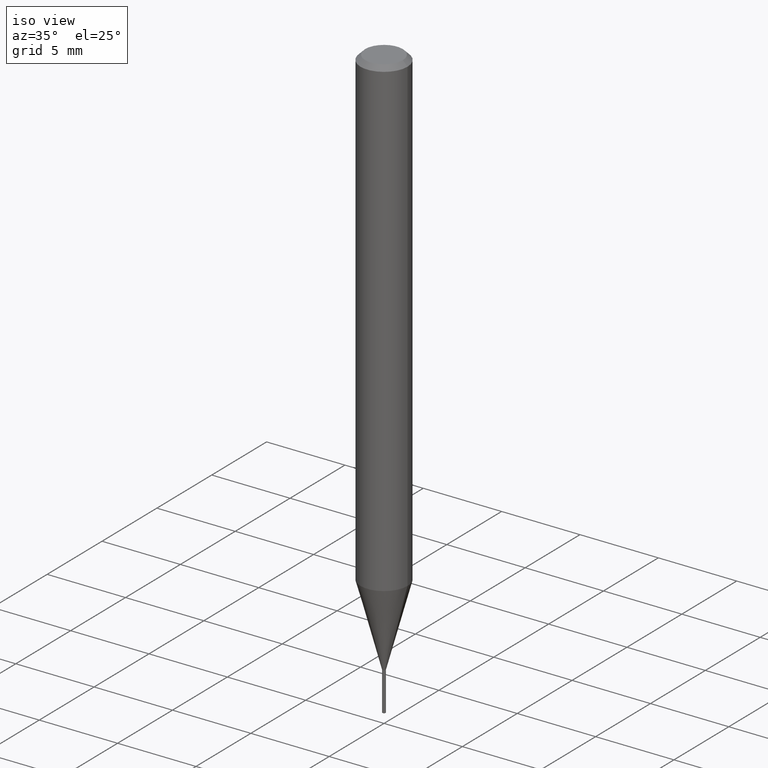
[diagram: clean part render]
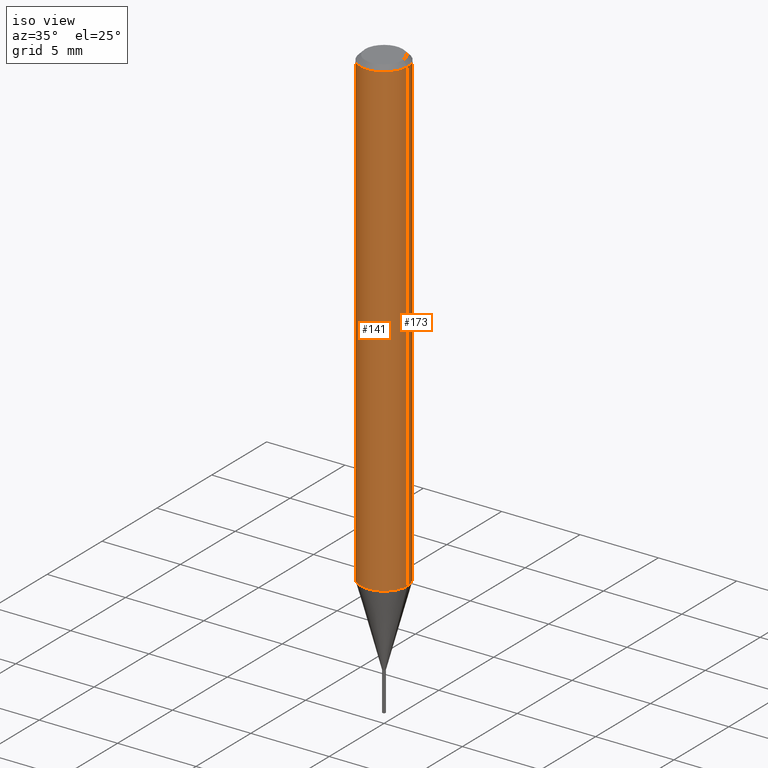
[diagram: same view with one multi-face feature highlighted, each face labeled with its STEP entity id]
A machine part, iso view. The highlighted faces form ONE feature: a constant-radius fillet chain: 2 tangent blend faces with common blend radius 1.4999 mm. The faces share edges in the B-rep.
Their STEP definitions:
[1] entity #141 (Cylinder):
#2 = CIRCLE ( 'NONE', #10, 0.05905000000000014404 ) ;
#8 = DIRECTION ( 'NONE',  ( 1.000000000000000000, -6.982962677686266711E-15, 0.000000000000000000 ) ) ;
#10 = AXIS2_PLACEMENT_3D ( 'NONE', #484, #146, #452 ) ;
#47 = DIRECTION ( 'NONE',  ( -2.445468806185136597E-29, 3.491481338843145583E-15, 1.000000000000000000 ) ) ;
#69 = VERTEX_POINT ( 'NONE', #350 ) ;
#88 = DIRECTION ( 'NONE',  ( 1.000000000000000000, -6.982962677686266711E-15, 4.876176775795936353E-29 ) ) ;
#115 = CARTESIAN_POINT ( 'NONE',  ( 2.888098660104664204E-31, -4.123439461173780263E-17, -0.01181000000000007218 ) ) ;
#128 = LINE ( 'NONE', #367, #328 ) ;
#131 = EDGE_CURVE ( 'NONE', #133, #456, #2, .T. ) ;
#133 = VERTEX_POINT ( 'NONE', #279 ) ;
#141 = ADVANCED_FACE ( 'NONE', ( #431 ), #274, .T. ) ;
#146 = DIRECTION ( 'NONE',  ( -2.445468806185136597E-29, 3.491481338843145583E-15, 1.000000000000000000 ) ) ;
#158 = EDGE_CURVE ( 'NONE', #69, #364, #202, .T. ) ;
#190 = ORIENTED_EDGE ( 'NONE', *, *, #419, .T. ) ;
#201 = DIRECTION ( 'NONE',  ( -2.445468806185136597E-29, 3.491481338843145583E-15, 1.000000000000000000 ) ) ;
#202 = CIRCLE ( 'NONE', #475, 0.05904999999999999832 ) ;
#274 = CYLINDRICAL_SURFACE ( 'NONE', #467, 0.05905000000000006771 ) ;
#279 = CARTESIAN_POINT ( 'NONE',  ( -0.05905000000000014404, -3.738303949389820923E-15, -1.190864000502954712 ) ) ;
#290 = ORIENTED_EDGE ( 'NONE', *, *, #131, .T. ) ;
#291 = LINE ( 'NONE', #446, #427 ) ;
#300 = CARTESIAN_POINT ( 'NONE',  ( 0.05905000000000014404, -4.570223380973535336E-15, -1.190864000502954712 ) ) ;
#325 = EDGE_CURVE ( 'NONE', #133, #69, #128, .T. ) ;
#326 = DIRECTION ( 'NONE',  ( -2.445468806185136877E-29, 3.491481338843145188E-15, 1.000000000000000000 ) ) ;
#328 = VECTOR ( 'NONE', #326, 39.37007874015748143 ) ;
#350 = CARTESIAN_POINT ( 'NONE',  ( -0.05904999999999999832, -1.679981429267608988E-15, -0.01181000000000007218 ) ) ;
#364 = VERTEX_POINT ( 'NONE', #432 ) ;
#367 = CARTESIAN_POINT ( 'NONE',  ( -0.05905000000000006771, 4.195754854663396409E-16, -2.904631170795525045E-30 ) ) ;
#372 = DIRECTION ( 'NONE',  ( -2.445468806185136877E-29, 3.491481338843145188E-15, 1.000000000000000000 ) ) ;
#402 = ORIENTED_EDGE ( 'NONE', *, *, #325, .F. ) ;
#409 = EDGE_LOOP ( 'NONE', ( #402, #290, #190, #417 ) ) ;
#417 = ORIENTED_EDGE ( 'NONE', *, *, #158, .F. ) ;
#419 = EDGE_CURVE ( 'NONE', #456, #364, #291, .T. ) ;
#423 = CARTESIAN_POINT ( 'NONE',  ( 0.000000000000000000, 0.000000000000000000, 0.000000000000000000 ) ) ;
#427 = VECTOR ( 'NONE', #372, 39.37007874015748143 ) ;
#431 = FACE_OUTER_BOUND ( 'NONE', #409, .T. ) ;
#432 = CARTESIAN_POINT ( 'NONE',  ( 0.05904999999999999832, -4.535783407291118600E-16, -0.01181000000000007218 ) ) ;
#446 = CARTESIAN_POINT ( 'NONE',  ( 0.05905000000000006771, -4.123439461173745257E-16, 2.879382386107503723E-30 ) ) ;
#452 = DIRECTION ( 'NONE',  ( 1.000000000000000000, -6.982962677686272233E-15, 0.000000000000000000 ) ) ;
#456 = VERTEX_POINT ( 'NONE', #300 ) ;
#467 = AXIS2_PLACEMENT_3D ( 'NONE', #423, #47, #88 ) ;
#475 = AXIS2_PLACEMENT_3D ( 'NONE', #115, #201, #8 ) ;
#484 = CARTESIAN_POINT ( 'NONE',  ( 2.912220765638816514E-29, -4.157879434856161205E-15, -1.190864000502954712 ) ) ;
[2] entity #173 (Cylinder):
#35 = EDGE_LOOP ( 'NONE', ( #471, #217, #479, #213 ) ) ;
#53 = CYLINDRICAL_SURFACE ( 'NONE', #153, 0.05905000000000006771 ) ;
#69 = VERTEX_POINT ( 'NONE', #350 ) ;
#77 = AXIS2_PLACEMENT_3D ( 'NONE', #370, #206, #99 ) ;
#85 = DIRECTION ( 'NONE',  ( -2.445468806185136597E-29, 3.491481338843145583E-15, 1.000000000000000000 ) ) ;
#99 = DIRECTION ( 'NONE',  ( 1.000000000000000000, -6.982962677686272233E-15, 0.000000000000000000 ) ) ;
#128 = LINE ( 'NONE', #367, #328 ) ;
#133 = VERTEX_POINT ( 'NONE', #279 ) ;
#145 = AXIS2_PLACEMENT_3D ( 'NONE', #275, #85, #458 ) ;
#153 = AXIS2_PLACEMENT_3D ( 'NONE', #459, #240, #165 ) ;
#165 = DIRECTION ( 'NONE',  ( 1.000000000000000000, -6.982962677686266711E-15, 4.876176775795936353E-29 ) ) ;
#173 = ADVANCED_FACE ( 'NONE', ( #194 ), #53, .T. ) ;
#191 = EDGE_CURVE ( 'NONE', #364, #69, #433, .T. ) ;
#194 = FACE_OUTER_BOUND ( 'NONE', #35, .T. ) ;
#206 = DIRECTION ( 'NONE',  ( -2.445468806185136597E-29, 3.491481338843145583E-15, 1.000000000000000000 ) ) ;
#213 = ORIENTED_EDGE ( 'NONE', *, *, #419, .F. ) ;
#217 = ORIENTED_EDGE ( 'NONE', *, *, #325, .T. ) ;
#240 = DIRECTION ( 'NONE',  ( -2.445468806185136597E-29, 3.491481338843145583E-15, 1.000000000000000000 ) ) ;
#262 = CIRCLE ( 'NONE', #77, 0.05905000000000014404 ) ;
#275 = CARTESIAN_POINT ( 'NONE',  ( 2.888098660104664204E-31, -4.123439461173780263E-17, -0.01181000000000007218 ) ) ;
#279 = CARTESIAN_POINT ( 'NONE',  ( -0.05905000000000014404, -3.738303949389820923E-15, -1.190864000502954712 ) ) ;
#291 = LINE ( 'NONE', #446, #427 ) ;
#300 = CARTESIAN_POINT ( 'NONE',  ( 0.05905000000000014404, -4.570223380973535336E-15, -1.190864000502954712 ) ) ;
#311 = EDGE_CURVE ( 'NONE', #456, #133, #262, .T. ) ;
#325 = EDGE_CURVE ( 'NONE', #133, #69, #128, .T. ) ;
#326 = DIRECTION ( 'NONE',  ( -2.445468806185136877E-29, 3.491481338843145188E-15, 1.000000000000000000 ) ) ;
#328 = VECTOR ( 'NONE', #326, 39.37007874015748143 ) ;
#350 = CARTESIAN_POINT ( 'NONE',  ( -0.05904999999999999832, -1.679981429267608988E-15, -0.01181000000000007218 ) ) ;
#364 = VERTEX_POINT ( 'NONE', #432 ) ;
#367 = CARTESIAN_POINT ( 'NONE',  ( -0.05905000000000006771, 4.195754854663396409E-16, -2.904631170795525045E-30 ) ) ;
#370 = CARTESIAN_POINT ( 'NONE',  ( 2.912220765638816514E-29, -4.157879434856161205E-15, -1.190864000502954712 ) ) ;
#372 = DIRECTION ( 'NONE',  ( -2.445468806185136877E-29, 3.491481338843145188E-15, 1.000000000000000000 ) ) ;
#419 = EDGE_CURVE ( 'NONE', #456, #364, #291, .T. ) ;
#427 = VECTOR ( 'NONE', #372, 39.37007874015748143 ) ;
#432 = CARTESIAN_POINT ( 'NONE',  ( 0.05904999999999999832, -4.535783407291118600E-16, -0.01181000000000007218 ) ) ;
#433 = CIRCLE ( 'NONE', #145, 0.05904999999999999832 ) ;
#446 = CARTESIAN_POINT ( 'NONE',  ( 0.05905000000000006771, -4.123439461173745257E-16, 2.879382386107503723E-30 ) ) ;
#456 = VERTEX_POINT ( 'NONE', #300 ) ;
#458 = DIRECTION ( 'NONE',  ( 1.000000000000000000, -6.982962677686266711E-15, 0.000000000000000000 ) ) ;
#459 = CARTESIAN_POINT ( 'NONE',  ( 0.000000000000000000, 0.000000000000000000, 0.000000000000000000 ) ) ;
#471 = ORIENTED_EDGE ( 'NONE', *, *, #311, .T. ) ;
#479 = ORIENTED_EDGE ( 'NONE', *, *, #191, .F. ) ;